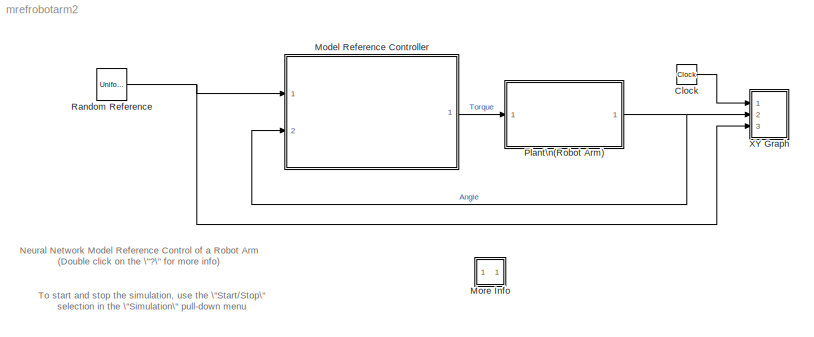
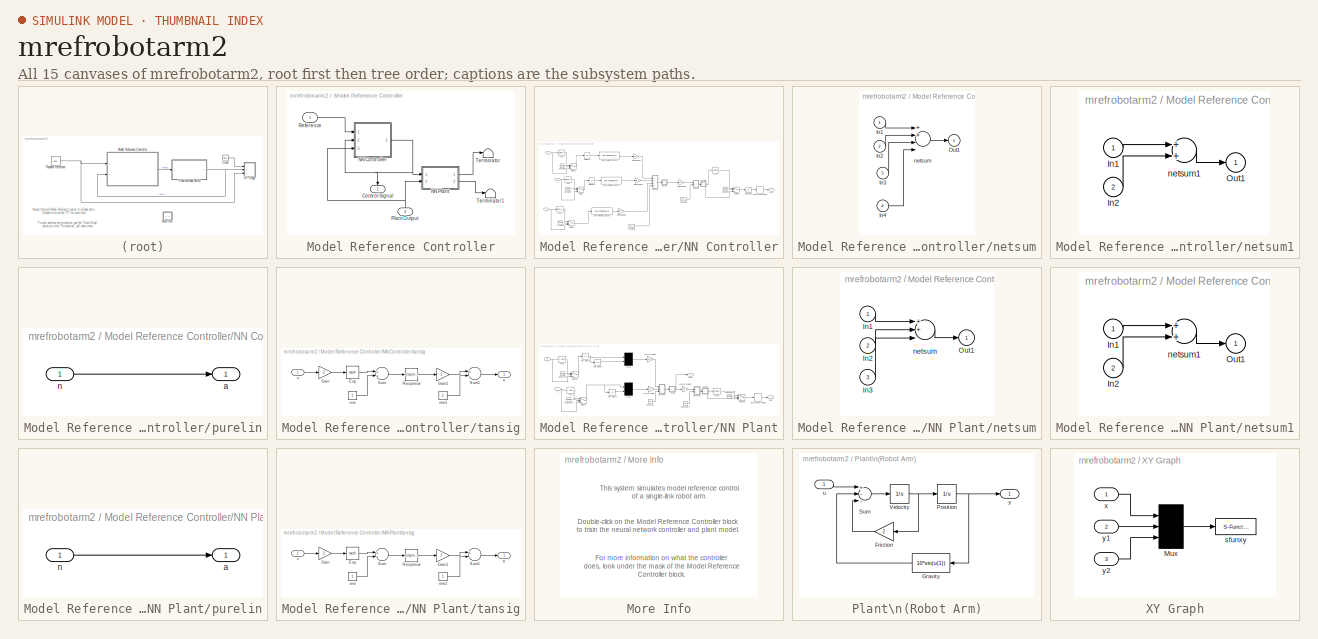
[diagram: thumbnail index - all 15 canvases of the model, root first then tree order]
MODEL mrefrobotarm2
KIND model
BLOCK [Clock] Clock
  SID = 1
BLOCK [SubSystem] Model Reference Controller
  OpenFcn = nncontrolutil('nnmodref','',gcbh,gcb,'');
  Ports = [2, 1]
  RequestExecContextInheritance = off
  SID = 2
  Variant = off
BLOCK [Outport] Model Reference Controller/Control Signal
  IconDisplay = Port number
  SID = 113
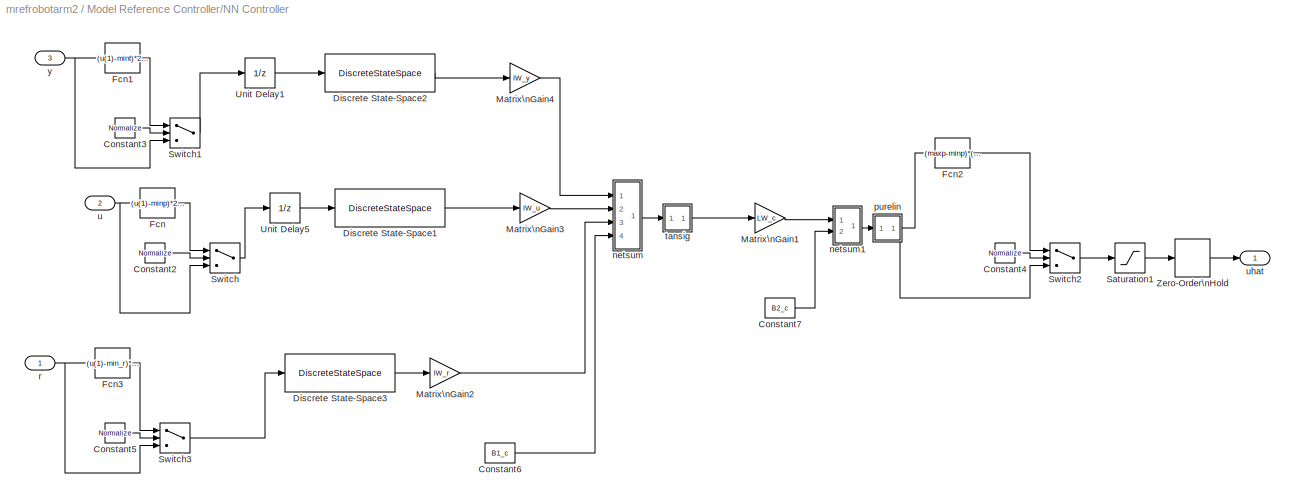
BLOCK [SubSystem] Model Reference Controller/NN Controller
  Ports = [3, 1]
  RequestExecContextInheritance = off
  SID = 5
  Variant = off
BLOCK [Constant] Model Reference Controller/NN Controller/Constant2
  SID = 9
  Value = Normalize
BLOCK [Constant] Model Reference Controller/NN Controller/Constant3
  SID = 10
  Value = Normalize
BLOCK [Constant] Model Reference Controller/NN Controller/Constant4
  SID = 11
  Value = Normalize
BLOCK [Constant] Model Reference Controller/NN Controller/Constant5
  SID = 12
  Value = Normalize
BLOCK [Constant] Model Reference Controller/NN Controller/Constant6
  SID = 13
  Value = B1_c
BLOCK [Constant] Model Reference Controller/NN Controller/Constant7
  SID = 14
  Value = B2_c
BLOCK [DiscreteStateSpace] Model Reference Controller/NN Controller/Discrete State-Space1
  A = [zeros(1,max([Nic-1 1]));eye(Nic-2,Nic-1)]
  B = eye(max([Nic-1 1]),1)
  C = [zeros(1,max([Nic-1 1]));eye(Nic-1,Nic-1)]
  D = eye(Nic,1)
  SID = 15
  SampleTime = Ts
BLOCK [DiscreteStateSpace] Model Reference Controller/NN Controller/Discrete State-Space2
  A = [zeros(1,max([Njc-1 1]));eye(Njc-2,Njc-1)]
  B = eye(max([Njc-1 1]),1)
  C = [zeros(1,max([Njc-1 1]));eye(Njc-1,Njc-1)]
  D = eye(Njc,1)
  SID = 16
  SampleTime = Ts
BLOCK [DiscreteStateSpace] Model Reference Controller/NN Controller/Discrete State-Space3
  A = [zeros(1,max([Nrc-1 1]));eye(Nrc-2,Nrc-1)]
  B = eye(max([Nrc-1 1]),1)
  C = [zeros(1,max([Nrc-1 1]));eye(Nrc-1,Nrc-1)]
  D = eye(Nrc,1)
  SID = 17
  SampleTime = Ts
BLOCK [Fcn] Model Reference Controller/NN Controller/Fcn
  Expr = (u(1)-minp)*2/(maxp-minp) - 1
  SID = 18
BLOCK [Fcn] Model Reference Controller/NN Controller/Fcn1
  Expr = (u(1)-mint)*2/(maxt-mint) - 1
  SID = 19
BLOCK [Fcn] Model Reference Controller/NN Controller/Fcn2
  Expr = (maxp-minp)*(u(1)+1)/2 + minp
  SID = 20
BLOCK [Fcn] Model Reference Controller/NN Controller/Fcn3
  Expr = (u(1)-min_r)*2/(max_r-min_r) - 1
  SID = 21
BLOCK [Gain] Model Reference Controller/NN Controller/Matrix\nGain1
  Gain = LW_c
  Multiplication = Matrix(K*u)
  SID = 22
BLOCK [Gain] Model Reference Controller/NN Controller/Matrix\nGain2
  Gain = IW_r
  Multiplication = Matrix(K*u)
  SID = 23
BLOCK [Gain] Model Reference Controller/NN Controller/Matrix\nGain3
  Gain = IW_u
  Multiplication = Matrix(K*u)
  SID = 24
BLOCK [Gain] Model Reference Controller/NN Controller/Matrix\nGain4
  Gain = IW_y
  Multiplication = Matrix(K*u)
  SID = 25
BLOCK [Saturate] Model Reference Controller/NN Controller/Saturation1
  InputPortMap = u0
  LowerLimit = min_i
  Ports = [1, 1]
  SID = 26
  UpperLimit = max_i
BLOCK [Switch] Model Reference Controller/NN Controller/Switch
  SID = 27
  Threshold = 0.5
BLOCK [Switch] Model Reference Controller/NN Controller/Switch1
  SID = 28
  Threshold = 0.5
BLOCK [Switch] Model Reference Controller/NN Controller/Switch2
  SID = 29
  Threshold = 0.5
BLOCK [Switch] Model Reference Controller/NN Controller/Switch3
  SID = 30
  Threshold = 0.5
BLOCK [UnitDelay] Model Reference Controller/NN Controller/Unit Delay1
  SID = 31
  SampleTime = Ts
BLOCK [UnitDelay] Model Reference Controller/NN Controller/Unit Delay5
  SID = 32
  SampleTime = Ts
BLOCK [ZeroOrderHold] Model Reference Controller/NN Controller/Zero-Order\nHold
  SID = 33
  SampleTime = Ts
BLOCK [SubSystem] Model Reference Controller/NN Controller/netsum
  Ports = [4, 1]
  RequestExecContextInheritance = off
  SID = 34
  Variant = off
BLOCK [Inport] Model Reference Controller/NN Controller/netsum/In1
  IconDisplay = Port number
  SID = 35
BLOCK [Inport] Model Reference Controller/NN Controller/netsum/In2
  IconDisplay = Port number
  Port = 2
  SID = 36
BLOCK [Inport] Model Reference Controller/NN Controller/netsum/In3
  IconDisplay = Port number
  Port = 3
  SID = 37
BLOCK [Inport] Model Reference Controller/NN Controller/netsum/In4
  IconDisplay = Port number
  Port = 4
  SID = 38
BLOCK [Outport] Model Reference Controller/NN Controller/netsum/Out1
  IconDisplay = Port number
  SID = 40
BLOCK [Sum] Model Reference Controller/NN Controller/netsum/netsum
  Inputs = 4
  Ports = [4, 1]
  SID = 39
BLOCK [SubSystem] Model Reference Controller/NN Controller/netsum1
  Ports = [2, 1]
  RequestExecContextInheritance = off
  SID = 41
  Variant = off
BLOCK [Inport] Model Reference Controller/NN Controller/netsum1/In1
  IconDisplay = Port number
  SID = 42
BLOCK [Inport] Model Reference Controller/NN Controller/netsum1/In2
  IconDisplay = Port number
  Port = 2
  SID = 43
BLOCK [Outport] Model Reference Controller/NN Controller/netsum1/Out1
  IconDisplay = Port number
  SID = 45
BLOCK [Sum] Model Reference Controller/NN Controller/netsum1/netsum1
  Inputs = 2
  Ports = [2, 1]
  SID = 44
BLOCK [SubSystem] Model Reference Controller/NN Controller/purelin
  Ports = [1, 1]
  RequestExecContextInheritance = off
  SID = 46
  Variant = off
BLOCK [Outport] Model Reference Controller/NN Controller/purelin/a
  IconDisplay = Port number
  SID = 48
BLOCK [Inport] Model Reference Controller/NN Controller/purelin/n
  IconDisplay = Port number
  SID = 47
BLOCK [Inport] Model Reference Controller/NN Controller/r
  IconDisplay = Port number
  SID = 6
BLOCK [SubSystem] Model Reference Controller/NN Controller/tansig
  Ports = [1, 1]
  RequestExecContextInheritance = off
  SID = 49
  Variant = off
BLOCK [Math] Model Reference Controller/NN Controller/tansig/Exp
  Ports = [1, 1]
  SID = 51
BLOCK [Gain] Model Reference Controller/NN Controller/tansig/Gain
  Gain = -2
  SID = 52
BLOCK [Gain] Model Reference Controller/NN Controller/tansig/Gain1
  Gain = 2
  SID = 53
BLOCK [Math] Model Reference Controller/NN Controller/tansig/Reciprocal
  Operator = reciprocal
  Ports = [1, 1]
  SID = 54
BLOCK [Sum] Model Reference Controller/NN Controller/tansig/Sum
  Ports = [2, 1]
  SID = 55
BLOCK [Sum] Model Reference Controller/NN Controller/tansig/Sum1
  Inputs = +-
  Ports = [2, 1]
  SID = 56
BLOCK [Outport] Model Reference Controller/NN Controller/tansig/a
  IconDisplay = Port number
  SID = 59
BLOCK [Inport] Model Reference Controller/NN Controller/tansig/n
  IconDisplay = Port number
  SID = 50
BLOCK [Constant] Model Reference Controller/NN Controller/tansig/one
  SID = 57
BLOCK [Constant] Model Reference Controller/NN Controller/tansig/one1
  SID = 58
BLOCK [Inport] Model Reference Controller/NN Controller/u
  IconDisplay = Port number
  Port = 2
  SID = 7
BLOCK [Outport] Model Reference Controller/NN Controller/uhat
  IconDisplay = Port number
  SID = 60
BLOCK [Inport] Model Reference Controller/NN Controller/y
  IconDisplay = Port number
  Port = 3
  SID = 8
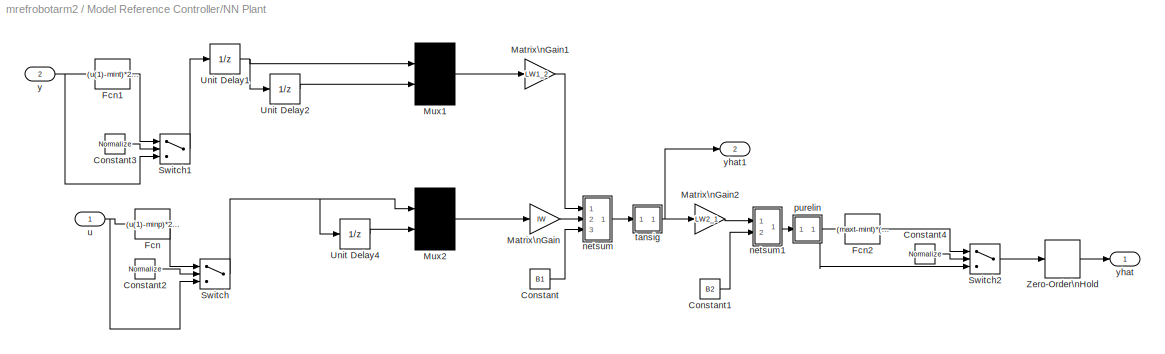
BLOCK [SubSystem] Model Reference Controller/NN Plant
  Ports = [2, 2]
  RequestExecContextInheritance = off
  SID = 61
  Variant = off
BLOCK [Constant] Model Reference Controller/NN Plant/Constant
  SID = 64
  Value = B1
BLOCK [Constant] Model Reference Controller/NN Plant/Constant1
  SID = 65
  Value = B2
BLOCK [Constant] Model Reference Controller/NN Plant/Constant2
  SID = 66
  Value = Normalize
BLOCK [Constant] Model Reference Controller/NN Plant/Constant3
  SID = 67
  Value = Normalize
BLOCK [Constant] Model Reference Controller/NN Plant/Constant4
  SID = 68
  Value = Normalize
BLOCK [Fcn] Model Reference Controller/NN Plant/Fcn
  Expr = (u(1)-minp)*2/(maxp-minp) - 1
  SID = 69
BLOCK [Fcn] Model Reference Controller/NN Plant/Fcn1
  Expr = (u(1)-mint)*2/(maxt-mint) - 1
  SID = 70
BLOCK [Fcn] Model Reference Controller/NN Plant/Fcn2
  Expr = (maxt-mint)*(u(1)+1)/2 + mint
  SID = 71
BLOCK [Gain] Model Reference Controller/NN Plant/Matrix\nGain
  Gain = IW
  Multiplication = Matrix(K*u)
  SID = 72
BLOCK [Gain] Model Reference Controller/NN Plant/Matrix\nGain1
  Gain = LW1_2
  Multiplication = Matrix(K*u)
  SID = 73
BLOCK [Gain] Model Reference Controller/NN Plant/Matrix\nGain2
  Gain = LW2_1
  Multiplication = Matrix(K*u)
  SID = 74
BLOCK [Mux] Model Reference Controller/NN Plant/Mux1
  DisplayOption = signals
  Inputs = 2
  Ports = [2, 1]
  SID = 75
BLOCK [Mux] Model Reference Controller/NN Plant/Mux2
  DisplayOption = signals
  Inputs = 2
  Ports = [2, 1]
  SID = 76
BLOCK [Switch] Model Reference Controller/NN Plant/Switch
  SID = 77
  Threshold = 0.5
BLOCK [Switch] Model Reference Controller/NN Plant/Switch1
  SID = 78
  Threshold = 0.5
BLOCK [Switch] Model Reference Controller/NN Plant/Switch2
  SID = 79
  Threshold = 0.5
BLOCK [UnitDelay] Model Reference Controller/NN Plant/Unit Delay1
  SID = 80
  SampleTime = Ts
BLOCK [UnitDelay] Model Reference Controller/NN Plant/Unit Delay2
  SID = 81
  SampleTime = Ts
BLOCK [UnitDelay] Model Reference Controller/NN Plant/Unit Delay4
  SID = 82
  SampleTime = Ts
BLOCK [ZeroOrderHold] Model Reference Controller/NN Plant/Zero-Order\nHold
  SID = 83
  SampleTime = Ts
BLOCK [SubSystem] Model Reference Controller/NN Plant/netsum
  Ports = [3, 1]
  RequestExecContextInheritance = off
  SID = 84
  Variant = off
BLOCK [Inport] Model Reference Controller/NN Plant/netsum/In1
  IconDisplay = Port number
  SID = 85
BLOCK [Inport] Model Reference Controller/NN Plant/netsum/In2
  IconDisplay = Port number
  Port = 2
  SID = 86
BLOCK [Inport] Model Reference Controller/NN Plant/netsum/In3
  IconDisplay = Port number
  Port = 3
  SID = 87
BLOCK [Outport] Model Reference Controller/NN Plant/netsum/Out1
  IconDisplay = Port number
  SID = 89
BLOCK [Sum] Model Reference Controller/NN Plant/netsum/netsum
  Inputs = 3
  Ports = [3, 1]
  SID = 88
BLOCK [SubSystem] Model Reference Controller/NN Plant/netsum1
  Ports = [2, 1]
  RequestExecContextInheritance = off
  SID = 90
  Variant = off
BLOCK [Inport] Model Reference Controller/NN Plant/netsum1/In1
  IconDisplay = Port number
  SID = 91
BLOCK [Inport] Model Reference Controller/NN Plant/netsum1/In2
  IconDisplay = Port number
  Port = 2
  SID = 92
BLOCK [Outport] Model Reference Controller/NN Plant/netsum1/Out1
  IconDisplay = Port number
  SID = 94
BLOCK [Sum] Model Reference Controller/NN Plant/netsum1/netsum1
  Inputs = 2
  Ports = [2, 1]
  SID = 93
BLOCK [SubSystem] Model Reference Controller/NN Plant/purelin
  Ports = [1, 1]
  RequestExecContextInheritance = off
  SID = 95
  Variant = off
BLOCK [Outport] Model Reference Controller/NN Plant/purelin/a
  IconDisplay = Port number
  SID = 97
BLOCK [Inport] Model Reference Controller/NN Plant/purelin/n
  IconDisplay = Port number
  SID = 96
BLOCK [SubSystem] Model Reference Controller/NN Plant/tansig
  Ports = [1, 1]
  RequestExecContextInheritance = off
  SID = 98
  Variant = off
BLOCK [Math] Model Reference Controller/NN Plant/tansig/Exp
  Ports = [1, 1]
  SID = 100
BLOCK [Gain] Model Reference Controller/NN Plant/tansig/Gain
  Gain = -2
  SID = 101
BLOCK [Gain] Model Reference Controller/NN Plant/tansig/Gain1
  Gain = 2
  SID = 102
BLOCK [Math] Model Reference Controller/NN Plant/tansig/Reciprocal
  Operator = reciprocal
  Ports = [1, 1]
  SID = 103
BLOCK [Sum] Model Reference Controller/NN Plant/tansig/Sum
  Ports = [2, 1]
  SID = 104
BLOCK [Sum] Model Reference Controller/NN Plant/tansig/Sum1
  Inputs = +-
  Ports = [2, 1]
  SID = 105
BLOCK [Outport] Model Reference Controller/NN Plant/tansig/a
  IconDisplay = Port number
  SID = 108
BLOCK [Inport] Model Reference Controller/NN Plant/tansig/n
  IconDisplay = Port number
  SID = 99
BLOCK [Constant] Model Reference Controller/NN Plant/tansig/one
  SID = 106
BLOCK [Constant] Model Reference Controller/NN Plant/tansig/one1
  SID = 107
BLOCK [Inport] Model Reference Controller/NN Plant/u
  IconDisplay = Port number
  SID = 62
BLOCK [Inport] Model Reference Controller/NN Plant/y
  IconDisplay = Port number
  Port = 2
  SID = 63
BLOCK [Outport] Model Reference Controller/NN Plant/yhat
  IconDisplay = Port number
  SID = 109
BLOCK [Outport] Model Reference Controller/NN Plant/yhat1
  IconDisplay = Port number
  Port = 2
  SID = 110
BLOCK [Inport] Model Reference Controller/Plant Output
  IconDisplay = Port number
  Port = 2
  SID = 4
BLOCK [Inport] Model Reference Controller/Reference
  IconDisplay = Port number
  SID = 3
BLOCK [Terminator] Model Reference Controller/Terminator
  SID = 111
BLOCK [Terminator] Model Reference Controller/Terminator1
  SID = 112
BLOCK [SubSystem] More Info
  Ports = []
  RequestExecContextInheritance = off
  SID = 114
  Variant = off
BLOCK [SubSystem] Plant\n(Robot Arm)
  Ports = [1, 1]
  RequestExecContextInheritance = off
  SID = 119
  Variant = off
BLOCK [Gain] Plant\n(Robot Arm)/Friction
  Gain = 2
  SID = 121
BLOCK [Fcn] Plant\n(Robot Arm)/Gravity
  Expr = 10*sin(u(1))
  SID = 122
BLOCK [Integrator] Plant\n(Robot Arm)/Position
  Ports = [1, 1]
  SID = 123
BLOCK [Sum] Plant\n(Robot Arm)/Sum
  Inputs = +--
  Ports = [3, 1]
  SID = 124
BLOCK [Integrator] Plant\n(Robot Arm)/Velocity
  Ports = [1, 1]
  SID = 125
BLOCK [Inport] Plant\n(Robot Arm)/u
  IconDisplay = Port number
  SID = 120
BLOCK [Outport] Plant\n(Robot Arm)/y
  IconDisplay = Port number
  SID = 126
BLOCK [UniformRandomNumber] Random Reference
  Maximum = 0.5
  Minimum = -0.5
  SID = 127
  SampleTime = 10
  Seed = round(now)
BLOCK [SubSystem] XY Graph
  CopyFcn = sfunxy2([],[],[],'CopyBlock')
  DeleteFcn = sfunxy2([],[],[],'DeleteBlock')
  LoadFcn = sfunxy2([],[],[],'LoadBlock')
  NameChangeFcn = sfunxy2([],[],[],'NameChange')
  Ports = [3]
  RequestExecContextInheritance = off
  SID = 128
  StartFcn = sfunxy2([],[],[],'Start')
  StopFcn = sfunxy2([],[],[],'Stop')
  Variant = off
BLOCK [Mux] XY Graph/Mux
  Inputs = 3
  Ports = [3, 1]
  SID = 128:4
BLOCK [S-Function] XY Graph/sfunxy
  EnableBusSupport = off
  FunctionName = sfunxy2
  Parameters = [xmin xmax ymin ymax], st
  Ports = [1]
  SFunctionDeploymentMode = off
  SID = 128:5
BLOCK [Inport] XY Graph/x
  IconDisplay = Port number
  SID = 128:1
BLOCK [Inport] XY Graph/y1
  IconDisplay = Port number
  Port = 2
  SID = 128:2
BLOCK [Inport] XY Graph/y2
  IconDisplay = Port number
  Port = 3
  SID = 128:3
ANNOTATION (root): Neural Network Model Reference Control of a Robot Arm\n(Double click on the \"?\" for more info)
ANNOTATION (root): To start and stop the simulation, use the \"Start/Stop\"\nselection in the \"Simulation\" pull-down menu
ANNOTATION More Info: Double-click on the Model Reference Controller block\nto train the neural network controller and plant model.
ANNOTATION More Info: For more information on what the controller \ndoes, look under the mask of the Model Reference \nController block.
ANNOTATION More Info: This system simulates model reference control\nof a single-link robot arm.
LINE Clock:1 -> XY Graph:1
LINE Model Reference Controller/NN Controller/Constant2:1 -> Model Reference Controller/NN Controller/Switch:2
LINE Model Reference Controller/NN Controller/Constant3:1 -> Model Reference Controller/NN Controller/Switch1:2
LINE Model Reference Controller/NN Controller/Constant4:1 -> Model Reference Controller/NN Controller/Switch2:2
LINE Model Reference Controller/NN Controller/Constant5:1 -> Model Reference Controller/NN Controller/Switch3:2
LINE Model Reference Controller/NN Controller/Constant6:1 -> Model Reference Controller/NN Controller/netsum:4
LINE Model Reference Controller/NN Controller/Constant7:1 -> Model Reference Controller/NN Controller/netsum1:2
LINE Model Reference Controller/NN Controller/Discrete State-Space1:1 -> Model Reference Controller/NN Controller/Matrix\nGain3:1
LINE Model Reference Controller/NN Controller/Discrete State-Space2:1 -> Model Reference Controller/NN Controller/Matrix\nGain4:1
LINE Model Reference Controller/NN Controller/Discrete State-Space3:1 -> Model Reference Controller/NN Controller/Matrix\nGain2:1
LINE Model Reference Controller/NN Controller/Fcn1:1 -> Model Reference Controller/NN Controller/Switch1:1
LINE Model Reference Controller/NN Controller/Fcn2:1 -> Model Reference Controller/NN Controller/Switch2:1
LINE Model Reference Controller/NN Controller/Fcn3:1 -> Model Reference Controller/NN Controller/Switch3:1
LINE Model Reference Controller/NN Controller/Fcn:1 -> Model Reference Controller/NN Controller/Switch:1
LINE Model Reference Controller/NN Controller/Matrix\nGain1:1 -> Model Reference Controller/NN Controller/netsum1:1
LINE Model Reference Controller/NN Controller/Matrix\nGain2:1 -> Model Reference Controller/NN Controller/netsum:3
LINE Model Reference Controller/NN Controller/Matrix\nGain3:1 -> Model Reference Controller/NN Controller/netsum:2
LINE Model Reference Controller/NN Controller/Matrix\nGain4:1 -> Model Reference Controller/NN Controller/netsum:1
LINE Model Reference Controller/NN Controller/Saturation1:1 -> Model Reference Controller/NN Controller/Zero-Order\nHold:1
LINE Model Reference Controller/NN Controller/Switch1:1 -> Model Reference Controller/NN Controller/Unit Delay1:1
LINE Model Reference Controller/NN Controller/Switch2:1 -> Model Reference Controller/NN Controller/Saturation1:1
LINE Model Reference Controller/NN Controller/Switch3:1 -> Model Reference Controller/NN Controller/Discrete State-Space3:1
LINE Model Reference Controller/NN Controller/Switch:1 -> Model Reference Controller/NN Controller/Unit Delay5:1
LINE Model Reference Controller/NN Controller/Unit Delay1:1 -> Model Reference Controller/NN Controller/Discrete State-Space2:1
LINE Model Reference Controller/NN Controller/Unit Delay5:1 -> Model Reference Controller/NN Controller/Discrete State-Space1:1
LINE Model Reference Controller/NN Controller/Zero-Order\nHold:1 -> Model Reference Controller/NN Controller/uhat:1
LINE Model Reference Controller/NN Controller/netsum/In1:1 -> Model Reference Controller/NN Controller/netsum/netsum:1
LINE Model Reference Controller/NN Controller/netsum/In2:1 -> Model Reference Controller/NN Controller/netsum/netsum:2
LINE Model Reference Controller/NN Controller/netsum/In3:1 -> Model Reference Controller/NN Controller/netsum/netsum:3
LINE Model Reference Controller/NN Controller/netsum/In4:1 -> Model Reference Controller/NN Controller/netsum/netsum:4
LINE Model Reference Controller/NN Controller/netsum/netsum:1 -> Model Reference Controller/NN Controller/netsum/Out1:1
LINE Model Reference Controller/NN Controller/netsum1/In1:1 -> Model Reference Controller/NN Controller/netsum1/netsum1:1
LINE Model Reference Controller/NN Controller/netsum1/In2:1 -> Model Reference Controller/NN Controller/netsum1/netsum1:2
LINE Model Reference Controller/NN Controller/netsum1/netsum1:1 -> Model Reference Controller/NN Controller/netsum1/Out1:1
LINE Model Reference Controller/NN Controller/netsum1:1 -> Model Reference Controller/NN Controller/purelin:1
LINE Model Reference Controller/NN Controller/netsum:1 -> Model Reference Controller/NN Controller/tansig:1
LINE Model Reference Controller/NN Controller/purelin/n:1 -> Model Reference Controller/NN Controller/purelin/a:1
NET Model Reference Controller/NN Controller/purelin:1 -> Model Reference Controller/NN Controller/Fcn2:1, Model Reference Controller/NN Controller/Switch2:3
NET Model Reference Controller/NN Controller/r:1 -> Model Reference Controller/NN Controller/Fcn3:1, Model Reference Controller/NN Controller/Switch3:3
LINE Model Reference Controller/NN Controller/tansig/Exp:1 -> Model Reference Controller/NN Controller/tansig/Sum:1
LINE Model Reference Controller/NN Controller/tansig/Gain1:1 -> Model Reference Controller/NN Controller/tansig/Sum1:1
LINE Model Reference Controller/NN Controller/tansig/Gain:1 -> Model Reference Controller/NN Controller/tansig/Exp:1
LINE Model Reference Controller/NN Controller/tansig/Reciprocal:1 -> Model Reference Controller/NN Controller/tansig/Gain1:1
LINE Model Reference Controller/NN Controller/tansig/Sum1:1 -> Model Reference Controller/NN Controller/tansig/a:1
LINE Model Reference Controller/NN Controller/tansig/Sum:1 -> Model Reference Controller/NN Controller/tansig/Reciprocal:1
LINE Model Reference Controller/NN Controller/tansig/n:1 -> Model Reference Controller/NN Controller/tansig/Gain:1
LINE Model Reference Controller/NN Controller/tansig/one1:1 -> Model Reference Controller/NN Controller/tansig/Sum1:2
LINE Model Reference Controller/NN Controller/tansig/one:1 -> Model Reference Controller/NN Controller/tansig/Sum:2
LINE Model Reference Controller/NN Controller/tansig:1 -> Model Reference Controller/NN Controller/Matrix\nGain1:1
NET Model Reference Controller/NN Controller/u:1 -> Model Reference Controller/NN Controller/Fcn:1, Model Reference Controller/NN Controller/Switch:3
NET Model Reference Controller/NN Controller/y:1 -> Model Reference Controller/NN Controller/Fcn1:1, Model Reference Controller/NN Controller/Switch1:3
NET Model Reference Controller/NN Controller:1 -> Model Reference Controller/Control Signal:1, Model Reference Controller/NN Controller:2, Model Reference Controller/NN Plant:1
LINE Model Reference Controller/NN Plant/Constant1:1 -> Model Reference Controller/NN Plant/netsum1:2
LINE Model Reference Controller/NN Plant/Constant2:1 -> Model Reference Controller/NN Plant/Switch:2
LINE Model Reference Controller/NN Plant/Constant3:1 -> Model Reference Controller/NN Plant/Switch1:2
LINE Model Reference Controller/NN Plant/Constant4:1 -> Model Reference Controller/NN Plant/Switch2:2
LINE Model Reference Controller/NN Plant/Constant:1 -> Model Reference Controller/NN Plant/netsum:3
LINE Model Reference Controller/NN Plant/Fcn1:1 -> Model Reference Controller/NN Plant/Switch1:1
LINE Model Reference Controller/NN Plant/Fcn2:1 -> Model Reference Controller/NN Plant/Switch2:1
LINE Model Reference Controller/NN Plant/Fcn:1 -> Model Reference Controller/NN Plant/Switch:1
LINE Model Reference Controller/NN Plant/Matrix\nGain1:1 -> Model Reference Controller/NN Plant/netsum:1
LINE Model Reference Controller/NN Plant/Matrix\nGain2:1 -> Model Reference Controller/NN Plant/netsum1:1
LINE Model Reference Controller/NN Plant/Matrix\nGain:1 -> Model Reference Controller/NN Plant/netsum:2
LINE Model Reference Controller/NN Plant/Mux1:1 -> Model Reference Controller/NN Plant/Matrix\nGain1:1
LINE Model Reference Controller/NN Plant/Mux2:1 -> Model Reference Controller/NN Plant/Matrix\nGain:1
LINE Model Reference Controller/NN Plant/Switch1:1 -> Model Reference Controller/NN Plant/Unit Delay1:1
LINE Model Reference Controller/NN Plant/Switch2:1 -> Model Reference Controller/NN Plant/Zero-Order\nHold:1
NET Model Reference Controller/NN Plant/Switch:1 -> Model Reference Controller/NN Plant/Mux2:1, Model Reference Controller/NN Plant/Unit Delay4:1
NET Model Reference Controller/NN Plant/Unit Delay1:1 -> Model Reference Controller/NN Plant/Mux1:1, Model Reference Controller/NN Plant/Unit Delay2:1
LINE Model Reference Controller/NN Plant/Unit Delay2:1 -> Model Reference Controller/NN Plant/Mux1:2
LINE Model Reference Controller/NN Plant/Unit Delay4:1 -> Model Reference Controller/NN Plant/Mux2:2
LINE Model Reference Controller/NN Plant/Zero-Order\nHold:1 -> Model Reference Controller/NN Plant/yhat:1
LINE Model Reference Controller/NN Plant/netsum/In1:1 -> Model Reference Controller/NN Plant/netsum/netsum:1
LINE Model Reference Controller/NN Plant/netsum/In2:1 -> Model Reference Controller/NN Plant/netsum/netsum:2
LINE Model Reference Controller/NN Plant/netsum/In3:1 -> Model Reference Controller/NN Plant/netsum/netsum:3
LINE Model Reference Controller/NN Plant/netsum/netsum:1 -> Model Reference Controller/NN Plant/netsum/Out1:1
LINE Model Reference Controller/NN Plant/netsum1/In1:1 -> Model Reference Controller/NN Plant/netsum1/netsum1:1
LINE Model Reference Controller/NN Plant/netsum1/In2:1 -> Model Reference Controller/NN Plant/netsum1/netsum1:2
LINE Model Reference Controller/NN Plant/netsum1/netsum1:1 -> Model Reference Controller/NN Plant/netsum1/Out1:1
LINE Model Reference Controller/NN Plant/netsum1:1 -> Model Reference Controller/NN Plant/purelin:1
LINE Model Reference Controller/NN Plant/netsum:1 -> Model Reference Controller/NN Plant/tansig:1
LINE Model Reference Controller/NN Plant/purelin/n:1 -> Model Reference Controller/NN Plant/purelin/a:1
NET Model Reference Controller/NN Plant/purelin:1 -> Model Reference Controller/NN Plant/Fcn2:1, Model Reference Controller/NN Plant/Switch2:3
LINE Model Reference Controller/NN Plant/tansig/Exp:1 -> Model Reference Controller/NN Plant/tansig/Sum:1
LINE Model Reference Controller/NN Plant/tansig/Gain1:1 -> Model Reference Controller/NN Plant/tansig/Sum1:1
LINE Model Reference Controller/NN Plant/tansig/Gain:1 -> Model Reference Controller/NN Plant/tansig/Exp:1
LINE Model Reference Controller/NN Plant/tansig/Reciprocal:1 -> Model Reference Controller/NN Plant/tansig/Gain1:1
LINE Model Reference Controller/NN Plant/tansig/Sum1:1 -> Model Reference Controller/NN Plant/tansig/a:1
LINE Model Reference Controller/NN Plant/tansig/Sum:1 -> Model Reference Controller/NN Plant/tansig/Reciprocal:1
LINE Model Reference Controller/NN Plant/tansig/n:1 -> Model Reference Controller/NN Plant/tansig/Gain:1
LINE Model Reference Controller/NN Plant/tansig/one1:1 -> Model Reference Controller/NN Plant/tansig/Sum1:2
LINE Model Reference Controller/NN Plant/tansig/one:1 -> Model Reference Controller/NN Plant/tansig/Sum:2
NET Model Reference Controller/NN Plant/tansig:1 -> Model Reference Controller/NN Plant/Matrix\nGain2:1, Model Reference Controller/NN Plant/yhat1:1
NET Model Reference Controller/NN Plant/u:1 -> Model Reference Controller/NN Plant/Fcn:1, Model Reference Controller/NN Plant/Switch:3
NET Model Reference Controller/NN Plant/y:1 -> Model Reference Controller/NN Plant/Fcn1:1, Model Reference Controller/NN Plant/Switch1:3
LINE Model Reference Controller/NN Plant:1 -> Model Reference Controller/Terminator:1
LINE Model Reference Controller/NN Plant:2 -> Model Reference Controller/Terminator1:1
NET Model Reference Controller/Plant Output:1 -> Model Reference Controller/NN Controller:3, Model Reference Controller/NN Plant:2
LINE Model Reference Controller/Reference:1 -> Model Reference Controller/NN Controller:1
LINE Model Reference Controller:1 -> Plant\n(Robot Arm):1
LINE Plant\n(Robot Arm)/Friction:1 -> Plant\n(Robot Arm)/Sum:3
LINE Plant\n(Robot Arm)/Gravity:1 -> Plant\n(Robot Arm)/Sum:2
NET Plant\n(Robot Arm)/Position:1 -> Plant\n(Robot Arm)/Gravity:1, Plant\n(Robot Arm)/y:1
LINE Plant\n(Robot Arm)/Sum:1 -> Plant\n(Robot Arm)/Velocity:1
NET Plant\n(Robot Arm)/Velocity:1 -> Plant\n(Robot Arm)/Friction:1, Plant\n(Robot Arm)/Position:1
LINE Plant\n(Robot Arm)/u:1 -> Plant\n(Robot Arm)/Sum:1
NET Plant\n(Robot Arm):1 -> Model Reference Controller:2, XY Graph:2
NET Random Reference:1 -> Model Reference Controller:1, XY Graph:3
LINE XY Graph/Mux:1 -> XY Graph/sfunxy:1
LINE XY Graph/x:1 -> XY Graph/Mux:1
LINE XY Graph/y1:1 -> XY Graph/Mux:2
LINE XY Graph/y2:1 -> XY Graph/Mux:3
note: NET lines group one-source signal fan-out (src -> all destinations, sorted); 1:1 wires keep LINE
